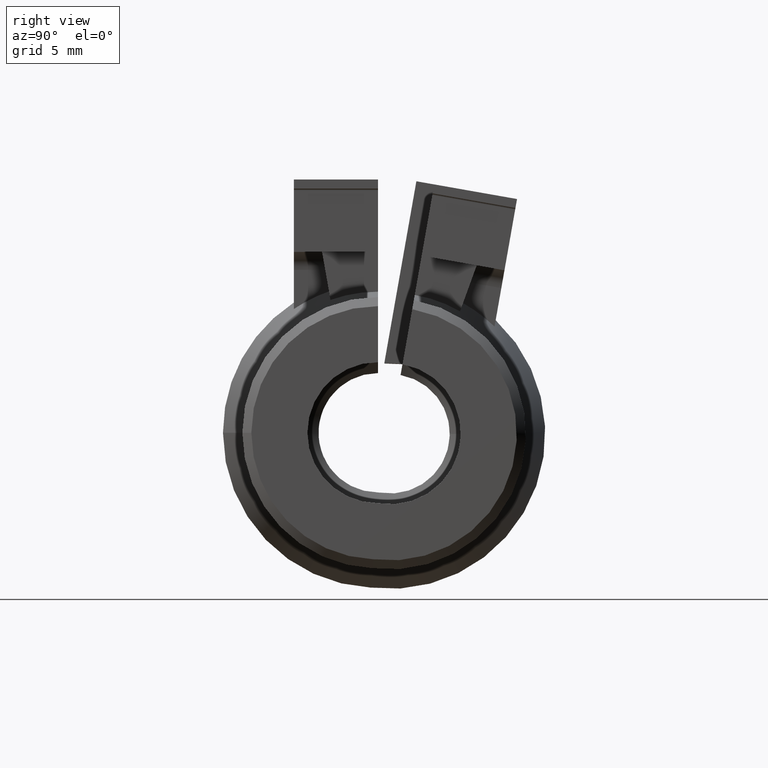
[diagram: clean part render]
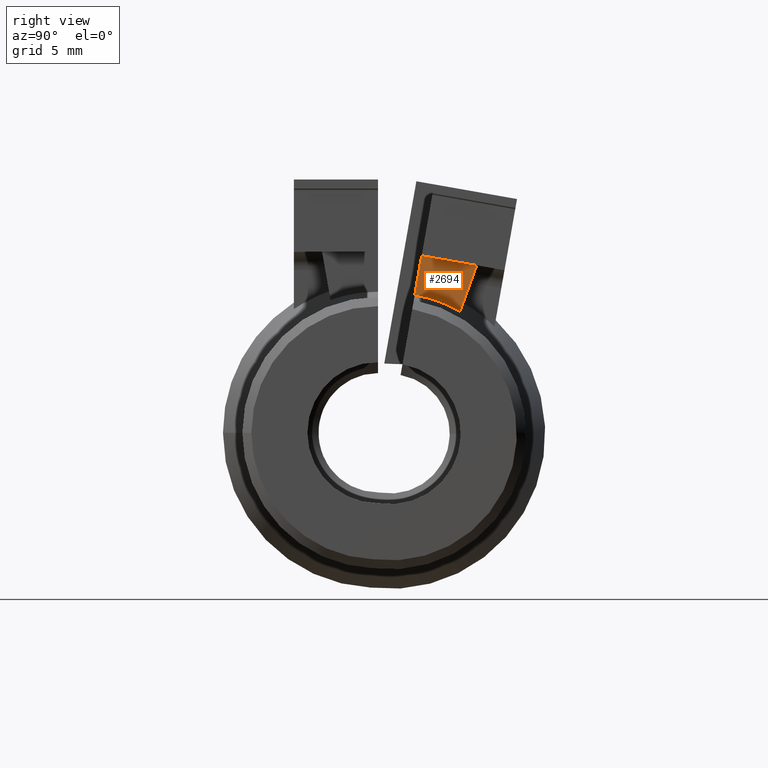
[diagram: same view with one face highlighted and labeled with its STEP entity id]
A machine part, right view. The second image highlights one B-rep face of the part: STEP entity #2694.
In plain terms, the highlighted planar face has unit normal (1, 0, 0).
Its self-contained STEP definition (entity closure, byte-faithful):
#115 = EDGE_LOOP ( 'NONE', ( #338, #229, #2663, #1460 ) ) ;
#229 = ORIENTED_EDGE ( 'NONE', *, *, #2740, .T. ) ;
#338 = ORIENTED_EDGE ( 'NONE', *, *, #618, .T. ) ;
#385 = CARTESIAN_POINT ( 'NONE',  ( 0.3149606299212600047, 0.2150017968058869633, 0.3642322919763332778 ) ) ;
#459 = CARTESIAN_POINT ( 'NONE',  ( 0.3149606299212601157, 0.05332503093708806929, 0.1488779713974497099 ) ) ;
#618 = EDGE_CURVE ( 'NONE', #3464, #3338, #1071, .T. ) ;
#935 = AXIS2_PLACEMENT_3D ( 'NONE', #2166, #1897, #3255 ) ;
#1071 = LINE ( 'NONE', #2453, #2941 ) ;
#1394 = EDGE_CURVE ( 'NONE', #3464, #3434, #1753, .T. ) ;
#1460 = ORIENTED_EDGE ( 'NONE', *, *, #1394, .F. ) ;
#1468 = DIRECTION ( 'NONE',  ( 1.000000000000000000, 0.0000000000000000000, 0.0000000000000000000 ) ) ;
#1485 = DIRECTION ( 'NONE',  ( 0.0000000000000000000, -0.9848077530122080203, 0.1736481776669299426 ) ) ;
#1621 = CARTESIAN_POINT ( 'NONE',  ( 0.3149606299212601157, 0.09502793974686289669, 0.3853869199555000069 ) ) ;
#1624 = DIRECTION ( 'NONE',  ( 0.0000000000000000000, 0.3420201433256688794, 0.9396926207859083169 ) ) ;
#1732 = CARTESIAN_POINT ( 'NONE',  ( 0.3149606299216521355, 0.07998816642548529920, 0.3000921269468003194 ) ) ;
#1753 = CIRCLE ( 'NONE', #935, 0.3070901847252211492 ) ;
#1783 = FACE_OUTER_BOUND ( 'NONE', #115, .T. ) ;
#1897 = DIRECTION ( 'NONE',  ( 1.000000000000000000, -2.317349101800703050E-15, 2.994175218052257406E-16 ) ) ;
#2039 = VECTOR ( 'NONE', #1485, 39.37007874015748854 ) ;
#2166 = CARTESIAN_POINT ( 'NONE',  ( 0.3149606299220441552, 0.02666251546854371546, -0.002332667844582300871 ) ) ;
#2212 = AXIS2_PLACEMENT_3D ( 'NONE', #2636, #1468, #3102 ) ;
#2353 = LINE ( 'NONE', #385, #2039 ) ;
#2453 = CARTESIAN_POINT ( 'NONE',  ( 0.3149606299212600047, 0.1786957939100880521, 0.2644823688294716812 ) ) ;
#2501 = VECTOR ( 'NONE', #3462, 39.37007874015748854 ) ;
#2636 = CARTESIAN_POINT ( 'NONE',  ( 0.3149606299212600047, 0.07916247756648472911, 0.2954094127320846530 ) ) ;
#2663 = ORIENTED_EDGE ( 'NONE', *, *, #2880, .T. ) ;
#2694 = ADVANCED_FACE ( 'NONE', ( #1783 ), #3173, .T. ) ;
#2740 = EDGE_CURVE ( 'NONE', #3338, #3333, #2353, .T. ) ;
#2880 = EDGE_CURVE ( 'NONE', #3333, #3434, #3208, .T. ) ;
#2941 = VECTOR ( 'NONE', #1624, 39.37007874015748854 ) ;
#3033 = CARTESIAN_POINT ( 'NONE',  ( 0.3149606299216522465, 0.1786957939132123863, 0.2644823688380555371 ) ) ;
#3102 = DIRECTION ( 'NONE',  ( 0.0000000000000000000, 0.0000000000000000000, -1.000000000000000000 ) ) ;
#3173 = PLANE ( 'NONE',  #2212 ) ;
#3208 = LINE ( 'NONE', #459, #2501 ) ;
#3255 = DIRECTION ( 'NONE',  ( -2.223978597776311308E-15, -1.000000000000000000, -2.664430609132791872E-15 ) ) ;
#3333 = VERTEX_POINT ( 'NONE', #1621 ) ;
#3338 = VERTEX_POINT ( 'NONE', #3552 ) ;
#3434 = VERTEX_POINT ( 'NONE', #1732 ) ;
#3462 = DIRECTION ( 'NONE',  ( -0.0000000000000000000, -0.1736481776669309696, -0.9848077530122077983 ) ) ;
#3464 = VERTEX_POINT ( 'NONE', #3033 ) ;
#3552 = CARTESIAN_POINT ( 'NONE',  ( 0.3149606299212600602, 0.2150017968058869633, 0.3642322919763333888 ) ) ;